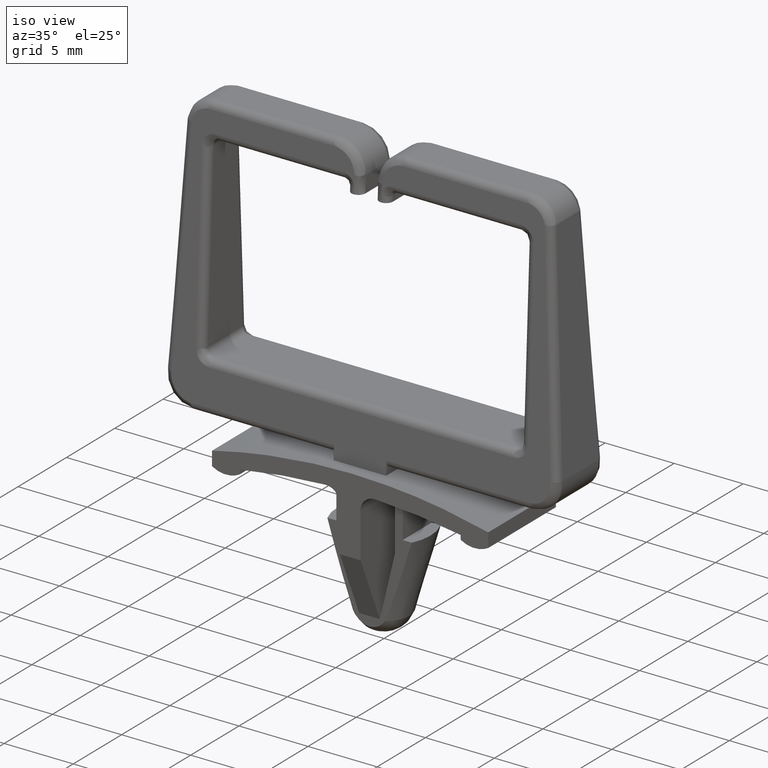
[diagram: clean part render]
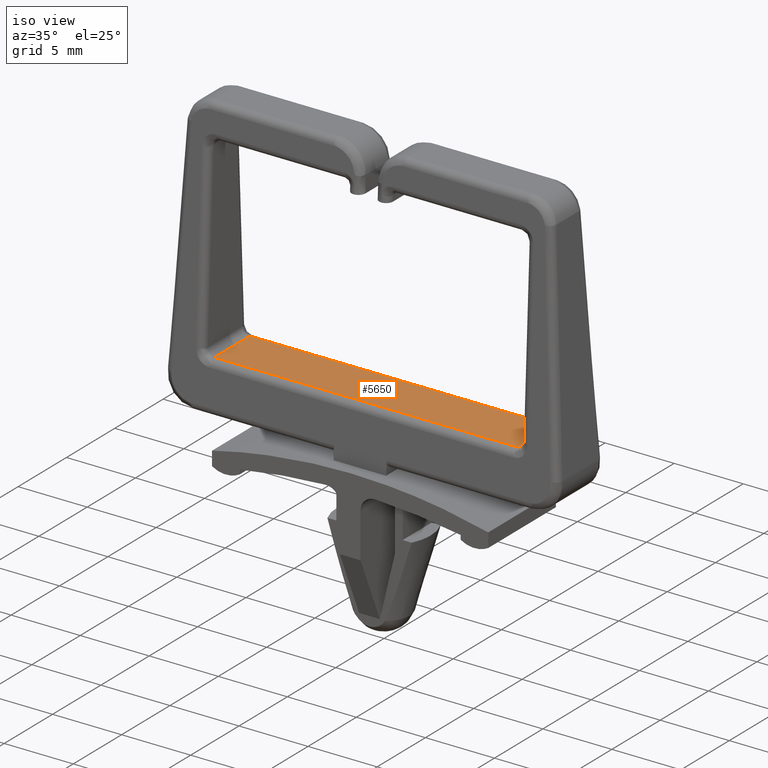
[diagram: same view with one face highlighted and labeled with its STEP entity id]
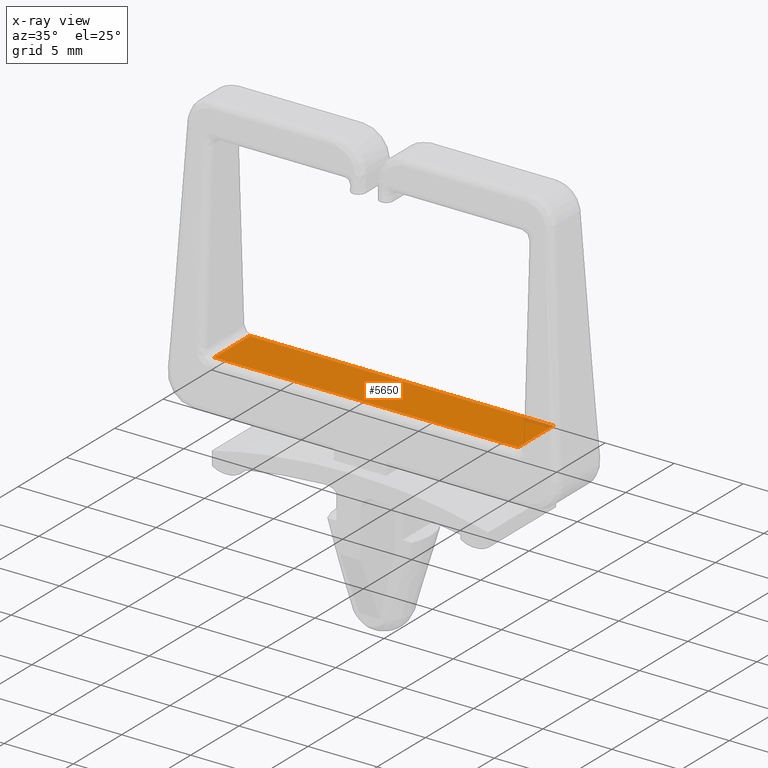
[diagram: x-ray of the same camera — body ghosted, the highlighted face saturated]
A machine part, iso view. The second image highlights one B-rep face of the part: STEP entity #5650.
The next image is the same camera in x-ray: the body ghosted, the highlighted face saturated — about 1% of this face is hidden behind the body in this view.
In plain terms, the highlighted face is a freeform B-spline surface patch.
Its self-contained STEP definition (entity closure, byte-faithful):
#1121=CARTESIAN_POINT('',(11.0,1.836555200286695,0.0));
#1122=VERTEX_POINT('',#1121);
#1182=CARTESIAN_POINT('',(-11.0,1.836555200286695,0.0));
#1183=VERTEX_POINT('',#1182);
#1197=CARTESIAN_POINT('',(11.0,1.836555200286695,0.0));
#1198=CARTESIAN_POINT('',(-11.0,1.836555200286695,0.0));
#1199=QUASI_UNIFORM_CURVE('',1,(#1197,#1198),.UNSPECIFIED.,.F.,.U.);
#1200=EDGE_CURVE('',#1122,#1183,#1199,.T.);
#3044=CARTESIAN_POINT('',(-11.0,-1.836555020966025,0.0));
#3045=VERTEX_POINT('',#3044);
#3107=CARTESIAN_POINT('',(11.0,-1.836555020966025,0.0));
#3108=VERTEX_POINT('',#3107);
#3122=CARTESIAN_POINT('',(-11.0,-1.836555020966025,0.0));
#3123=CARTESIAN_POINT('',(11.0,-1.836555020966025,0.0));
#3124=QUASI_UNIFORM_CURVE('',1,(#3122,#3123),.UNSPECIFIED.,.F.,.U.);
#3125=EDGE_CURVE('',#3045,#3108,#3124,.T.);
#5624=CARTESIAN_POINT('',(-11.0,1.836555200286695,0.0));
#5625=CARTESIAN_POINT('',(-11.0,-1.836555020966025,0.0));
#5626=QUASI_UNIFORM_CURVE('',1,(#5624,#5625),.UNSPECIFIED.,.F.,.U.);
#5627=EDGE_CURVE('',#1183,#3045,#5626,.T.);
#5635=CARTESIAN_POINT('',(-12.098899957359730,-2.020026869398399,0.0));
#5636=CARTESIAN_POINT('',(12.098900547445711,-2.020026869398399,0.0));
#5637=CARTESIAN_POINT('',(-12.098899957359730,2.020027147239561,0.0));
#5638=CARTESIAN_POINT('',(12.098900547445711,2.020027147239561,0.0));
#5639=B_SPLINE_SURFACE_WITH_KNOTS('',1,1,((#5635,#5637),(#5636,#5638)),.UNSPECIFIED.,.F.,.F.,.U.,(2,2),(2,2),(0.0,24.197800504805439),(0.0,4.040054016637960),.UNSPECIFIED.);
#5640=CARTESIAN_POINT('',(11.0,1.836555200286695,0.0));
#5641=CARTESIAN_POINT('',(11.0,-1.836555020966025,0.0));
#5642=QUASI_UNIFORM_CURVE('',1,(#5640,#5641),.UNSPECIFIED.,.F.,.U.);
#5643=EDGE_CURVE('',#1122,#3108,#5642,.T.);
#5644=ORIENTED_EDGE('',*,*,#5643,.F.);
#5645=ORIENTED_EDGE('',*,*,#1200,.T.);
#5646=ORIENTED_EDGE('',*,*,#5627,.T.);
#5647=ORIENTED_EDGE('',*,*,#3125,.T.);
#5648=EDGE_LOOP('',(#5644,#5645,#5646,#5647));
#5649=FACE_OUTER_BOUND('',#5648,.T.);
#5650=ADVANCED_FACE('',(#5649),#5639,.T.);